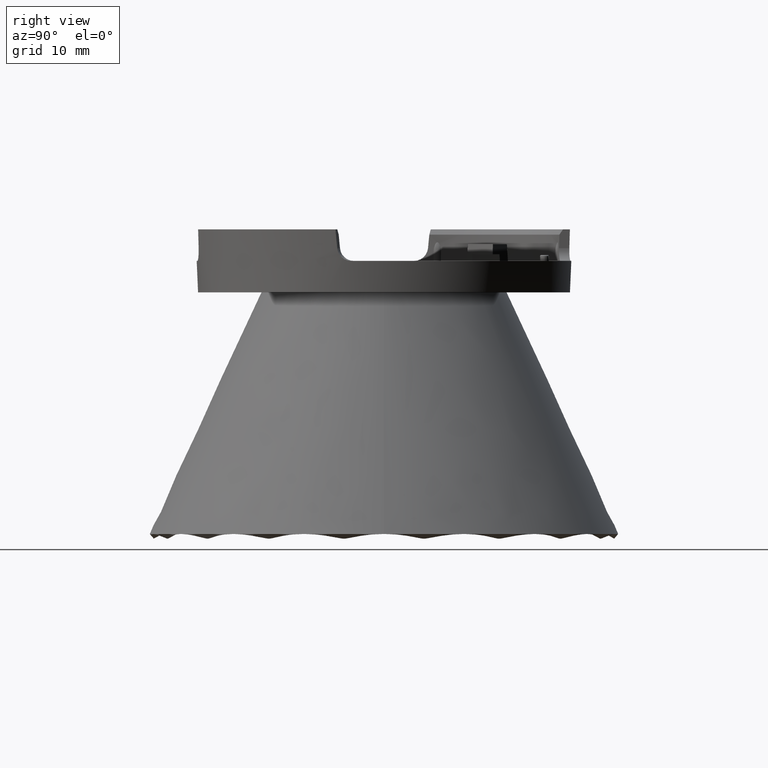
[diagram: clean part render]
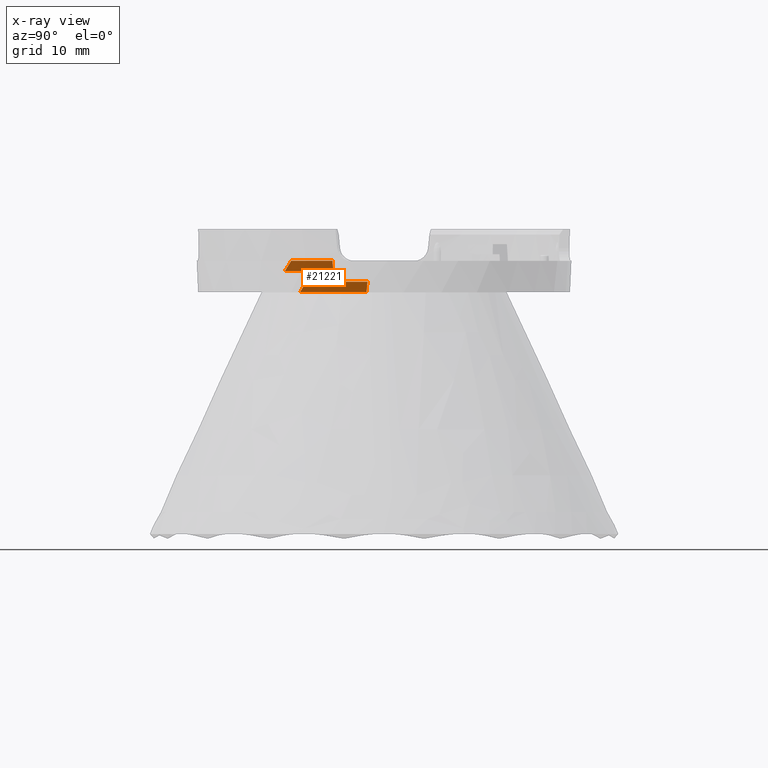
[diagram: x-ray — body ghosted, one internal face saturated and labeled with its STEP entity id]
A machine part, right view, then the same camera in x-ray: the body is ghosted and one INTERNAL B-rep face — a face not visible from any outside direction — is saturated and labeled: STEP entity #21221.
In plain terms, the highlighted face is a freeform B-spline surface patch.
Its self-contained STEP definition (entity closure, byte-faithful):
#131 = CARTESIAN_POINT ( 'NONE',  ( -7.675324630459002200, 13.87566546781181200, 0.9960303038916049600 ) ) ;
#185 = CARTESIAN_POINT ( 'NONE',  ( -12.52871963390233400, 12.04239836357370000, 2.351579910127433900 ) ) ;
#521 = ORIENTED_EDGE ( 'NONE', *, *, #9592, .F. ) ;
#543 = EDGE_CURVE ( 'NONE', #10567, #22135, #23509, .T. ) ;
#724 = AXIS2_PLACEMENT_3D ( 'NONE', #1088, #17727, #3494 ) ;
#843 = ORIENTED_EDGE ( 'NONE', *, *, #27506, .T. ) ;
#1088 = CARTESIAN_POINT ( 'NONE',  ( 0.0000000000000000000, 0.0000000000000000000, 1.500000000000001300 ) ) ;
#1096 = AXIS2_PLACEMENT_3D ( 'NONE', #1703, #18336, #4104 ) ;
#1116 = CARTESIAN_POINT ( 'NONE',  ( -12.49999999999999800, 10.14501958122916700, 1.500000000000001300 ) ) ;
#1703 = CARTESIAN_POINT ( 'NONE',  ( 0.0000000000000000000, 0.0000000000000000000, 4.500000000000010700 ) ) ;
#2577 = CARTESIAN_POINT ( 'NONE',  ( -17.36447761436576100, 2.371322483668632400, 4.500000000000002700 ) ) ;
#2694 = ORIENTED_EDGE ( 'NONE', *, *, #543, .F. ) ;
#2816 = CARTESIAN_POINT ( 'NONE',  ( -13.78838214283533500, 7.325812034014913500, 0.4909775617209850000 ) ) ;
#3185 = EDGE_CURVE ( 'NONE', #11663, #16955, #15035, .T. ) ;
#3297 = CARTESIAN_POINT ( 'NONE',  ( -17.11430208008692600, 2.456229601964715400, 3.999702061144121900 ) ) ;
#3494 = DIRECTION ( 'NONE',  ( -1.000000000000000000, 0.0000000000000000000, 0.0000000000000000000 ) ) ;
#4104 = DIRECTION ( 'NONE',  ( -1.000000000000000000, -8.881784197001252300E-016, 0.0000000000000000000 ) ) ;
#4209 =( BOUNDED_SURFACE ( )  B_SPLINE_SURFACE ( 3, 3, ( 
 ( #16609, #4892, #21498, #7285 ),
 ( #23908, #9668, #26270, #12066 ),
 ( #28662, #14451, #185, #16817 ),
 ( #2577, #19196, #4989, #21601 ) ),
 .UNSPECIFIED., .F., .F., .F. ) 
 B_SPLINE_SURFACE_WITH_KNOTS ( ( 4, 4 ),
 ( 4, 4 ),
 ( 0.0000000000000000000, 0.1801735269630398200 ),
 ( 0.0000000000000000000, 1.000000000000000000 ),
 .UNSPECIFIED. ) 
 GEOMETRIC_REPRESENTATION_ITEM ( )  RATIONAL_B_SPLINE_SURFACE ( (
 ( 1.000000000000000000, 0.9266774258383329000, 0.9266774258383329000, 1.000000000000000000),
 ( 1.000000000000000000, 0.9266774258383329000, 0.9266774258383329000, 1.000000000000000000),
 ( 1.000000000000000000, 0.9266774258383329000, 0.9266774258383329000, 1.000000000000000000),
 ( 1.000000000000000000, 0.9266774258383329000, 0.9266774258383329000, 1.000000000000000000) ) ) 
 REPRESENTATION_ITEM ( '' )  SURFACE ( )  );
#4340 = CARTESIAN_POINT ( 'NONE',  ( -17.34641902933749300, 2.499999999999994700, 4.500000000000005300 ) ) ;
#4880 = CARTESIAN_POINT ( 'NONE',  ( -7.762465990577805300, 13.25657103554096000, 0.0000000000000000000 ) ) ;
#4892 = CARTESIAN_POINT ( 'NONE',  ( -14.53899962432170400, 7.071031178639223900, 0.0000000000000000000 ) ) ;
#4989 = CARTESIAN_POINT ( 'NONE',  ( -13.29763564637115400, 12.78146773385667400, 4.500000000000000900 ) ) ;
#5712 = CARTESIAN_POINT ( 'NONE',  ( -16.64810807984281400, 2.368767004711103100, 2.999999999999998200 ) ) ;
#5792 = CARTESIAN_POINT ( 'NONE',  ( -12.49999999999999800, 10.14501958122916700, 1.500000000000001300 ) ) ;
#5977 = DIRECTION ( 'NONE',  ( 0.0000000000000000000, 0.0000000000000000000, -1.000000000000000000 ) ) ;
#7076 = EDGE_CURVE ( 'NONE', #22135, #23529, #26414, .T. ) ;
#7285 = CARTESIAN_POINT ( 'NONE',  ( -7.205947024977598800, 13.56712502147883500, 0.0000000000000000000 ) ) ;
#7415 = CARTESIAN_POINT ( 'NONE',  ( 0.0000000000000000000, 0.0000000000000000000, 0.0000000000000000000 ) ) ;
#7537 = CIRCLE ( 'NONE', #9828, 15.36204914310654400 ) ;
#8186 = ORIENTED_EDGE ( 'NONE', *, *, #24944, .F. ) ;
#9592 = EDGE_CURVE ( 'NONE', #23529, #24407, #7537, .T. ) ;
#9668 = CARTESIAN_POINT ( 'NONE',  ( -14.90107037004882400, 7.247124004697680800, 0.7497565291589166600 ) ) ;
#9669 = CIRCLE ( 'NONE', #724, 16.09880189031230900 ) ;
#9744 = FACE_OUTER_BOUND ( 'NONE', #17151, .T. ) ;
#9798 = DIRECTION ( 'NONE',  ( -1.000000000000000000, 0.0000000000000000000, 0.0000000000000000000 ) ) ;
#9828 = AXIS2_PLACEMENT_3D ( 'NONE', #7415, #24043, #9798 ) ;
#10100 = AXIS2_PLACEMENT_3D ( 'NONE', #20176, #5977, #22594 ) ;
#10567 = VERTEX_POINT ( 'NONE', #12370 ) ;
#11663 = VERTEX_POINT ( 'NONE', #1116 ) ;
#12017 = CARTESIAN_POINT ( 'NONE',  ( -7.719287763369516500, 13.57367681164894600, 0.4935293953312649400 ) ) ;
#12066 = CARTESIAN_POINT ( 'NONE',  ( -7.385399716388304700, 13.90499277034942500, 0.7497565291589168800 ) ) ;
#12156 = CARTESIAN_POINT ( 'NONE',  ( -12.58627462334314900, 10.79269896865253200, 2.486123457213369500 ) ) ;
#12306 = CARTESIAN_POINT ( 'NONE',  ( -14.66726367547403400, 7.194495125832431400, 1.991936690483740600 ) ) ;
#12370 = CARTESIAN_POINT ( 'NONE',  ( -16.64810807984281400, 2.368767004711103100, 2.999999999999998200 ) ) ;
#12642 = ORIENTED_EDGE ( 'NONE', *, *, #3185, .F. ) ;
#14144 = EDGE_CURVE ( 'NONE', #17670, #10567, #26927, .T. ) ;
#14451 = CARTESIAN_POINT ( 'NONE',  ( -15.62757751283616200, 7.600460189503654500, 2.351579910127433900 ) ) ;
#14619 = VERTEX_POINT ( 'NONE', #30794 ) ;
#14686 = CARTESIAN_POINT ( 'NONE',  ( -15.24044112410344600, 7.106301014133328500, 3.000000000000002700 ) ) ;
#15035 = B_SPLINE_CURVE_WITH_KNOTS ( 'NONE', 3,
 ( #5792, #12156, #24799, #27180 ),
 .UNSPECIFIED., .F., .F.,
 ( 4, 4 ),
 ( 0.0000000000000000000, 0.003537025345800631700 ),
 .UNSPECIFIED. ) ;
#15164 = CARTESIAN_POINT ( 'NONE',  ( -17.34641902933749300, 2.499999999999994700, 4.500000000000005300 ) ) ;
#16575 = EDGE_CURVE ( 'NONE', #24407, #14619, #25578, .T. ) ;
#16609 = CARTESIAN_POINT ( 'NONE',  ( -15.22077786951569500, 2.078575214439402500, 0.0000000000000000000 ) ) ;
#16766 = CARTESIAN_POINT ( 'NONE',  ( -7.631232995288885800, 14.17517919728486000, 1.500000000000001300 ) ) ;
#16817 = CARTESIAN_POINT ( 'NONE',  ( -7.745477584155469100, 14.58293578499153400, 2.351579910127433900 ) ) ;
#16955 = VERTEX_POINT ( 'NONE', #21817 ) ;
#17058 = CARTESIAN_POINT ( 'NONE',  ( -14.08281049870269700, 7.282114543467276500, 0.9904421641799688900 ) ) ;
#17151 = EDGE_LOOP ( 'NONE', ( #26205, #2694, #24411, #8186, #12642, #843, #24577, #521 ) ) ;
#17670 = VERTEX_POINT ( 'NONE', #4340 ) ;
#17727 = DIRECTION ( 'NONE',  ( 0.0000000000000000000, 0.0000000000000000000, -1.000000000000000000 ) ) ;
#18336 = DIRECTION ( 'NONE',  ( -0.0000000000000000000, -0.0000000000000000000, 1.000000000000000000 ) ) ;
#19196 = CARTESIAN_POINT ( 'NONE',  ( -16.58667747969962400, 8.066917713704866000, 4.500000000000000900 ) ) ;
#19435 = CARTESIAN_POINT ( 'NONE',  ( -13.47938524953944200, 7.368767004711101800, 0.0000000000000000000 ) ) ;
#19910 = CARTESIAN_POINT ( 'NONE',  ( -16.88165666977862900, 2.412480287033755400, 3.499645103273274000 ) ) ;
#20176 = CARTESIAN_POINT ( 'NONE',  ( 0.0000000000000000000, 0.0000000000000000000, 3.000000000000002700 ) ) ;
#21221 = ADVANCED_FACE ( 'NONE', ( #9744 ), #4209, .T. ) ;
#21431 = CARTESIAN_POINT ( 'NONE',  ( -13.47938524953944200, 7.368767004711101800, 0.0000000000000000000 ) ) ;
#21498 = CARTESIAN_POINT ( 'NONE',  ( -11.65600041982961000, 11.20355507052322800, 0.0000000000000000000 ) ) ;
#21601 = CARTESIAN_POINT ( 'NONE',  ( -8.220835155615501900, 15.47792371364965000, 4.500000000000002700 ) ) ;
#21817 = CARTESIAN_POINT ( 'NONE',  ( -12.76246599057777000, 12.01114961111997900, 4.500000000000005300 ) ) ;
#22135 = VERTEX_POINT ( 'NONE', #24046 ) ;
#22594 = DIRECTION ( 'NONE',  ( -1.000000000000000000, 0.0000000000000000000, 0.0000000000000000000 ) ) ;
#23509 = CIRCLE ( 'NONE', #10100, 16.81578305523521900 ) ;
#23529 = VERTEX_POINT ( 'NONE', #21431 ) ;
#23908 = CARTESIAN_POINT ( 'NONE',  ( -15.59982722202708100, 2.130338836242033900, 0.7497565291589168800 ) ) ;
#24043 = DIRECTION ( 'NONE',  ( 0.0000000000000000000, 0.0000000000000000000, -1.000000000000000000 ) ) ;
#24046 = CARTESIAN_POINT ( 'NONE',  ( -15.24044112410344600, 7.106301014133328500, 3.000000000000002700 ) ) ;
#24407 = VERTEX_POINT ( 'NONE', #4880 ) ;
#24411 = ORIENTED_EDGE ( 'NONE', *, *, #14144, .F. ) ;
#24577 = ORIENTED_EDGE ( 'NONE', *, *, #16575, .F. ) ;
#24799 = CARTESIAN_POINT ( 'NONE',  ( -12.67401923072641200, 11.40933772311175600, 3.489048908889174500 ) ) ;
#24944 = EDGE_CURVE ( 'NONE', #16955, #17670, #27893, .T. ) ;
#25578 = B_SPLINE_CURVE_WITH_KNOTS ( 'NONE', 3,
 ( #28608, #12017, #131, #16766 ),
 .UNSPECIFIED., .F., .F.,
 ( 4, 4 ),
 ( 8.710000098272022000E-019, 0.001763723023797629000 ),
 .UNSPECIFIED. ) ;
#26205 = ORIENTED_EDGE ( 'NONE', *, *, #7076, .F. ) ;
#26270 = CARTESIAN_POINT ( 'NONE',  ( -11.94627463905053600, 11.48256185530870300, 0.7497565291589166600 ) ) ;
#26414 = B_SPLINE_CURVE_WITH_KNOTS ( 'NONE', 3,
 ( #14686, #28901, #12306, #17058, #2816, #19435 ),
 .UNSPECIFIED., .F., .F.,
 ( 4, 2, 4 ),
 ( 2.491306920542243500E-017, 0.001744291130341114000, 0.003488582260682202900 ),
 .UNSPECIFIED. ) ;
#26927 = B_SPLINE_CURVE_WITH_KNOTS ( 'NONE', 3,
 ( #15164, #3297, #19910, #5712 ),
 .UNSPECIFIED., .F., .F.,
 ( 4, 4 ),
 ( 0.01679876053419042000, 0.01845851723431758300 ),
 .UNSPECIFIED. ) ;
#27180 = CARTESIAN_POINT ( 'NONE',  ( -12.76246599057777000, 12.01114961111997900, 4.500000000000005300 ) ) ;
#27506 = EDGE_CURVE ( 'NONE', #11663, #14619, #9669, .T. ) ;
#27893 = CIRCLE ( 'NONE', #1096, 17.52564558415358300 ) ;
#28608 = CARTESIAN_POINT ( 'NONE',  ( -7.762465990577805300, 13.25657103554096000, 0.0000000000000000000 ) ) ;
#28662 = CARTESIAN_POINT ( 'NONE',  ( -16.36040251102317100, 2.234204286350771200, 2.351579910127433900 ) ) ;
#28901 = CARTESIAN_POINT ( 'NONE',  ( -14.95521681115836900, 7.150467610424561500, 2.495173494356267300 ) ) ;
#30794 = CARTESIAN_POINT ( 'NONE',  ( -7.631232995288885800, 14.17517919728486000, 1.500000000000001300 ) ) ;